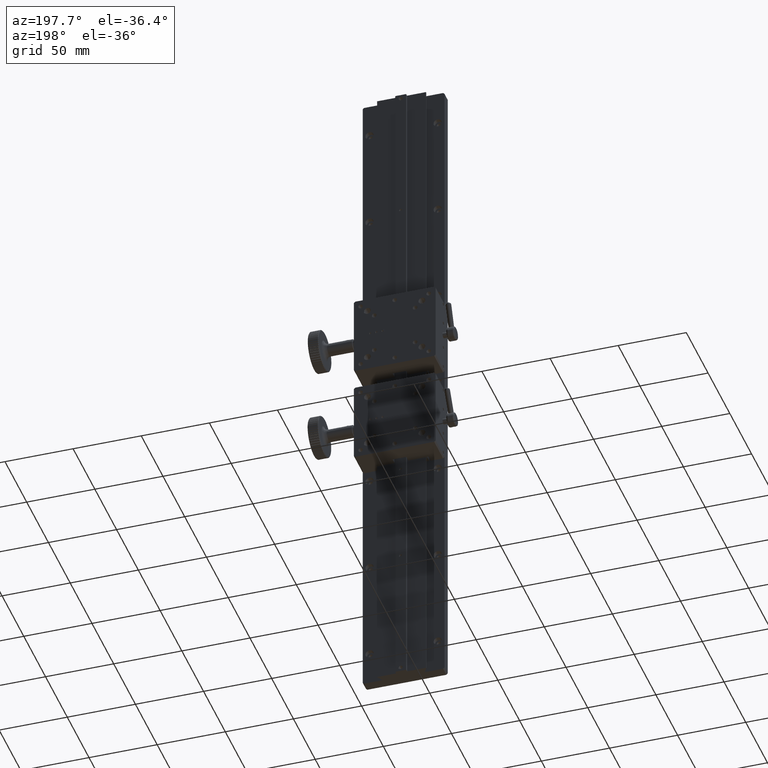
[diagram: clean part render]
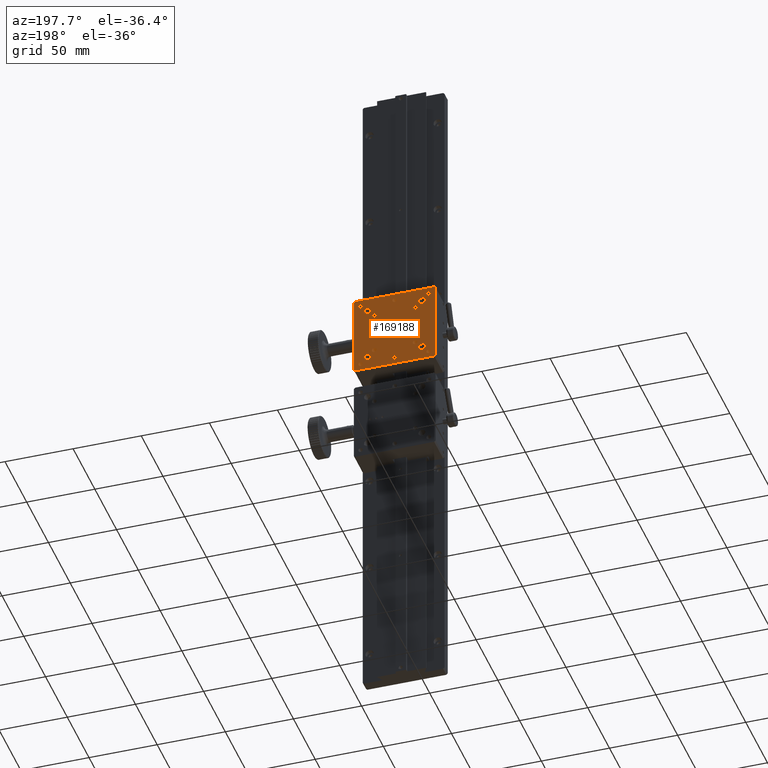
[diagram: same view with one face highlighted and labeled with its STEP entity id]
A machine part, auxiliary view. The second image highlights one B-rep face of the part: STEP entity #169188.
In plain terms, the highlighted planar face has unit normal (0, -1, 0).
Its self-contained STEP definition (entity closure, byte-faithful):
#4485 = CARTESIAN_POINT ( 'NONE',  ( 81.25156960994729616, 85.10272800986780339, 301.1623115483058086 ) ) ;
#6224 = DIRECTION ( 'NONE',  ( -1.000000000000000000, -5.551115123125777969E-15, 0.000000000000000000 ) ) ;
#6502 = DIRECTION ( 'NONE',  ( -0.7071067811865450192, -0.000000000000000000, 0.7071067811865500152 ) ) ;
#6530 = CARTESIAN_POINT ( 'NONE',  ( 89.50156960994729616, 85.10272800986787445, 326.1623115483058086 ) ) ;
#6948 = AXIS2_PLACEMENT_3D ( 'NONE', #197762, #8533, #70943 ) ;
#7522 = VERTEX_POINT ( 'NONE', #4485 ) ;
#8533 = DIRECTION ( 'NONE',  ( 6.982962677686266711E-15, -1.000000000000000000, 0.000000000000000000 ) ) ;
#11291 = AXIS2_PLACEMENT_3D ( 'NONE', #185112, #107363, #12258 ) ;
#11838 = DIRECTION ( 'NONE',  ( -6.982962677686266711E-15, 1.000000000000000000, 0.000000000000000000 ) ) ;
#12258 = DIRECTION ( 'NONE',  ( -1.000000000000000000, -5.551115123125777969E-15, 0.000000000000000000 ) ) ;
#12839 = DIRECTION ( 'NONE',  ( -1.000000000000000000, -8.410780489584597367E-15, 0.000000000000000000 ) ) ;
#13602 = AXIS2_PLACEMENT_3D ( 'NONE', #199665, #138268, #150581 ) ;
#14218 = AXIS2_PLACEMENT_3D ( 'NONE', #82358, #181527, #165202 ) ;
#14863 = ORIENTED_EDGE ( 'NONE', *, *, #68197, .F. ) ;
#16011 = AXIS2_PLACEMENT_3D ( 'NONE', #44872, #43873, #200396 ) ;
#16084 = VERTEX_POINT ( 'NONE', #95844 ) ;
#16324 = EDGE_LOOP ( 'NONE', ( #154426 ) ) ;
#19547 = EDGE_LOOP ( 'NONE', ( #190858 ) ) ;
#21563 = VERTEX_POINT ( 'NONE', #56458 ) ;
#21857 = DIRECTION ( 'NONE',  ( -1.000000000000000000, -8.410780489584597367E-15, 0.000000000000000000 ) ) ;
#22361 = CIRCLE ( 'NONE', #192216, 1.249999999999973355 ) ;
#22595 = EDGE_LOOP ( 'NONE', ( #23363 ) ) ;
#23037 = CARTESIAN_POINT ( 'NONE',  ( 94.50156960994731037, 85.10272800986791708, 330.1623115483057518 ) ) ;
#23363 = ORIENTED_EDGE ( 'NONE', *, *, #66671, .F. ) ;
#24172 = EDGE_CURVE ( 'NONE', #191690, #191690, #149913, .T. ) ;
#24865 = FACE_BOUND ( 'NONE', #92824, .T. ) ;
#25069 = ORIENTED_EDGE ( 'NONE', *, *, #109937, .F. ) ;
#27014 = DIRECTION ( 'NONE',  ( -1.000000000000000000, -1.110223024625180206E-14, 0.000000000000000000 ) ) ;
#27038 = ORIENTED_EDGE ( 'NONE', *, *, #124105, .F. ) ;
#27259 = DIRECTION ( 'NONE',  ( -6.982962677686266711E-15, 1.000000000000000000, 0.000000000000000000 ) ) ;
#28276 = EDGE_CURVE ( 'NONE', #7522, #7522, #70915, .T. ) ;
#31931 = DIRECTION ( 'NONE',  ( -1.000000000000000000, -8.410780489584597367E-15, 0.000000000000000000 ) ) ;
#32166 = ORIENTED_EDGE ( 'NONE', *, *, #76523, .F. ) ;
#32317 = ORIENTED_EDGE ( 'NONE', *, *, #24172, .F. ) ;
#32933 = DIRECTION ( 'NONE',  ( -6.982962677686266711E-15, 1.000000000000000000, 0.000000000000000000 ) ) ;
#33892 = AXIS2_PLACEMENT_3D ( 'NONE', #165435, #27259, #168474 ) ;
#36187 = ORIENTED_EDGE ( 'NONE', *, *, #131826, .F. ) ;
#36358 = CARTESIAN_POINT ( 'NONE',  ( 34.50156960994726774, 85.10272800986751918, 272.1623115483058086 ) ) ;
#36536 = EDGE_CURVE ( 'NONE', #86558, #92580, #110311, .T. ) ;
#37644 = DIRECTION ( 'NONE',  ( -0.7071067811865525687, -0.000000000000000000, -0.7071067811865425767 ) ) ;
#37935 = EDGE_LOOP ( 'NONE', ( #32317 ) ) ;
#41244 = CARTESIAN_POINT ( 'NONE',  ( 77.85156960994727626, 85.10272800986778918, 316.1623115483058086 ) ) ;
#42371 = DIRECTION ( 'NONE',  ( -6.982962677686266711E-15, 1.000000000000000000, 0.000000000000000000 ) ) ;
#43270 = FACE_BOUND ( 'NONE', #154446, .T. ) ;
#43585 = CARTESIAN_POINT ( 'NONE',  ( 79.50156960994726774, 85.10272800986780339, 286.1623115483058655 ) ) ;
#43873 = DIRECTION ( 'NONE',  ( -6.982962677686266711E-15, 1.000000000000000000, 0.000000000000000000 ) ) ;
#44267 = FACE_BOUND ( 'NONE', #68631, .T. ) ;
#44642 = DIRECTION ( 'NONE',  ( -1.000000000000000000, -6.982962677686266711E-15, -0.000000000000000000 ) ) ;
#44872 = CARTESIAN_POINT ( 'NONE',  ( 39.50156960994726774, 85.10272800986751918, 276.1623115483059223 ) ) ;
#46167 = AXIS2_PLACEMENT_3D ( 'NONE', #84987, #100320, #6224 ) ;
#46280 = CARTESIAN_POINT ( 'NONE',  ( 37.85156960994728337, 85.10272800986751918, 326.1623115483058086 ) ) ;
#48318 = CARTESIAN_POINT ( 'NONE',  ( 39.50156960994726774, 85.10272800986751918, 326.1623115483058086 ) ) ;
#51024 = ORIENTED_EDGE ( 'NONE', *, *, #194098, .F. ) ;
#51538 = CARTESIAN_POINT ( 'NONE',  ( 93.50156960994729616, 85.10272800986791708, 331.1623115483058086 ) ) ;
#52248 = EDGE_LOOP ( 'NONE', ( #153198 ) ) ;
#53356 = AXIS2_PLACEMENT_3D ( 'NONE', #63118, #125524, #94803 ) ;
#53853 = CARTESIAN_POINT ( 'NONE',  ( 34.50156960994726774, 85.10272800986750497, 271.1623115483058086 ) ) ;
#53971 = ORIENTED_EDGE ( 'NONE', *, *, #119361, .F. ) ;
#55141 = AXIS2_PLACEMENT_3D ( 'NONE', #133603, #11838, #12839 ) ;
#56422 = EDGE_CURVE ( 'NONE', #196757, #196757, #84496, .T. ) ;
#56458 = CARTESIAN_POINT ( 'NONE',  ( 94.50156960994729616, 85.10272800986791708, 272.1623115483058086 ) ) ;
#58076 = CARTESIAN_POINT ( 'NONE',  ( 94.50156960994726774, 85.10272800986791708, 272.1623115483058086 ) ) ;
#59641 = FACE_BOUND ( 'NONE', #194192, .T. ) ;
#60083 = EDGE_CURVE ( 'NONE', #139391, #139391, #76853, .T. ) ;
#61011 = LINE ( 'NONE', #106043, #166330 ) ;
#61131 = AXIS2_PLACEMENT_3D ( 'NONE', #88722, #183835, #106091 ) ;
#61686 = AXIS2_PLACEMENT_3D ( 'NONE', #72853, #135237, #167990 ) ;
#62277 = DIRECTION ( 'NONE',  ( 0.000000000000000000, -0.000000000000000000, -1.000000000000000000 ) ) ;
#63118 = CARTESIAN_POINT ( 'NONE',  ( 89.50156960994728195, 85.10272800986787445, 276.1623115483059223 ) ) ;
#63294 = VECTOR ( 'NONE', #134209, 999.9999999999998863 ) ;
#64616 = AXIS2_PLACEMENT_3D ( 'NONE', #6530, #86305, #21857 ) ;
#64652 = VERTEX_POINT ( 'NONE', #127049 ) ;
#65181 = EDGE_LOOP ( 'NONE', ( #71122 ) ) ;
#66671 = EDGE_CURVE ( 'NONE', #64652, #64652, #113962, .T. ) ;
#66900 = LINE ( 'NONE', #51538, #162616 ) ;
#67603 = EDGE_LOOP ( 'NONE', ( #184683 ) ) ;
#68197 = EDGE_CURVE ( 'NONE', #113425, #129528, #61011, .T. ) ;
#68631 = EDGE_LOOP ( 'NONE', ( #175545 ) ) ;
#68895 = DIRECTION ( 'NONE',  ( -6.982962677686266711E-15, 1.000000000000000000, 0.000000000000000000 ) ) ;
#68947 = VERTEX_POINT ( 'NONE', #144664 ) ;
#69959 = CARTESIAN_POINT ( 'NONE',  ( 62.85156960994728337, 85.10272800986767550, 276.1623115483059223 ) ) ;
#70168 = DIRECTION ( 'NONE',  ( -1.000000000000000000, -5.551115123125777969E-15, 0.000000000000000000 ) ) ;
#70711 = VERTEX_POINT ( 'NONE', #149465 ) ;
#70915 = CIRCLE ( 'NONE', #61131, 1.249999999999973355 ) ;
#70943 = DIRECTION ( 'NONE',  ( 1.000000000000000000, 6.982962677686266711E-15, 0.000000000000000000 ) ) ;
#71122 = ORIENTED_EDGE ( 'NONE', *, *, #192799, .F. ) ;
#71332 = ORIENTED_EDGE ( 'NONE', *, *, #77920, .T. ) ;
#72853 = CARTESIAN_POINT ( 'NONE',  ( 49.50156960994726774, 85.10272800986759023, 286.1623115483058655 ) ) ;
#72977 = FACE_BOUND ( 'NONE', #191419, .T. ) ;
#76523 = EDGE_CURVE ( 'NONE', #112692, #112692, #102672, .T. ) ;
#76853 = CIRCLE ( 'NONE', #142245, 1.649999999999984812 ) ;
#77920 = EDGE_CURVE ( 'NONE', #21563, #195431, #198219, .T. ) ;
#82264 = VERTEX_POINT ( 'NONE', #129326 ) ;
#82358 = CARTESIAN_POINT ( 'NONE',  ( 64.50156960994726774, 85.10272800986768971, 276.1623115483059223 ) ) ;
#84496 = CIRCLE ( 'NONE', #55141, 1.649999999999984812 ) ;
#84987 = CARTESIAN_POINT ( 'NONE',  ( 44.50156960994726063, 85.10272800986754760, 321.1623115483058086 ) ) ;
#86049 = VERTEX_POINT ( 'NONE', #148455 ) ;
#86281 = FACE_BOUND ( 'NONE', #168104, .T. ) ;
#86305 = DIRECTION ( 'NONE',  ( -6.982962677686266711E-15, 1.000000000000000000, 0.000000000000000000 ) ) ;
#86558 = VERTEX_POINT ( 'NONE', #194971 ) ;
#88178 = LINE ( 'NONE', #165961, #63294 ) ;
#88722 = CARTESIAN_POINT ( 'NONE',  ( 82.50156960994726774, 85.10272800986781760, 301.1623115483058086 ) ) ;
#88840 = EDGE_LOOP ( 'NONE', ( #199035 ) ) ;
#89399 = AXIS2_PLACEMENT_3D ( 'NONE', #146617, #68895, #193689 ) ;
#89574 = CIRCLE ( 'NONE', #33892, 1.649999999999984812 ) ;
#92580 = VERTEX_POINT ( 'NONE', #36358 ) ;
#92824 = EDGE_LOOP ( 'NONE', ( #156133 ) ) ;
#92975 = DIRECTION ( 'NONE',  ( -1.000000000000000000, -1.110223024625180206E-14, 0.000000000000000000 ) ) ;
#93106 = CARTESIAN_POINT ( 'NONE',  ( 35.50156960994725353, 85.10272800986751918, 331.1623115483058086 ) ) ;
#94374 = EDGE_CURVE ( 'NONE', #70711, #70711, #89574, .T. ) ;
#94803 = DIRECTION ( 'NONE',  ( -1.000000000000000000, -8.410780489584597367E-15, 0.000000000000000000 ) ) ;
#95844 = CARTESIAN_POINT ( 'NONE',  ( 77.85156960994727626, 85.10272800986778918, 286.1623115483058655 ) ) ;
#95975 = DIRECTION ( 'NONE',  ( -6.982962677686266711E-15, 1.000000000000000000, 0.000000000000000000 ) ) ;
#100320 = DIRECTION ( 'NONE',  ( -6.982962677686266711E-15, 1.000000000000000000, 0.000000000000000000 ) ) ;
#101844 = ORIENTED_EDGE ( 'NONE', *, *, #125742, .F. ) ;
#102318 = CARTESIAN_POINT ( 'NONE',  ( 93.50156960994732458, 85.10272800986790287, 331.1623115483058086 ) ) ;
#102408 = CIRCLE ( 'NONE', #200441, 2.500000000000002220 ) ;
#102672 = CIRCLE ( 'NONE', #11291, 2.500000000000002220 ) ;
#106043 = CARTESIAN_POINT ( 'NONE',  ( 34.50156960994726774, 85.10272800986750497, 331.1623115483058086 ) ) ;
#106091 = DIRECTION ( 'NONE',  ( -1.000000000000000000, -1.110223024625180206E-14, 0.000000000000000000 ) ) ;
#106673 = FACE_BOUND ( 'NONE', #37935, .T. ) ;
#107363 = DIRECTION ( 'NONE',  ( -6.982962677686266711E-15, 1.000000000000000000, 0.000000000000000000 ) ) ;
#108984 = DIRECTION ( 'NONE',  ( -1.000000000000000000, -8.410780489584597367E-15, 0.000000000000000000 ) ) ;
#109937 = EDGE_CURVE ( 'NONE', #86049, #86049, #167304, .T. ) ;
#110311 = LINE ( 'NONE', #202429, #117176 ) ;
#112692 = VERTEX_POINT ( 'NONE', #128048 ) ;
#112851 = EDGE_CURVE ( 'NONE', #16084, #16084, #199989, .T. ) ;
#113425 = VERTEX_POINT ( 'NONE', #102318 ) ;
#113962 = CIRCLE ( 'NONE', #16011, 1.649999999999984812 ) ;
#114163 = DIRECTION ( 'NONE',  ( -6.982962677686266711E-15, 1.000000000000000000, 0.000000000000000000 ) ) ;
#114758 = CIRCLE ( 'NONE', #46167, 2.500000000000002220 ) ;
#116239 = DIRECTION ( 'NONE',  ( 1.000000000000000000, 6.982962677686266711E-15, 0.000000000000000000 ) ) ;
#116928 = CARTESIAN_POINT ( 'NONE',  ( 35.50156960994731037, 85.10272800986760444, 271.1623115483058086 ) ) ;
#117176 = VECTOR ( 'NONE', #62277, 1000.000000000000000 ) ;
#117254 = VERTEX_POINT ( 'NONE', #163334 ) ;
#117987 = FACE_BOUND ( 'NONE', #65181, .T. ) ;
#119276 = CARTESIAN_POINT ( 'NONE',  ( 42.00156960994726063, 85.10272800986753339, 321.1623115483058086 ) ) ;
#119361 = EDGE_CURVE ( 'NONE', #188961, #195431, #193988, .T. ) ;
#120010 = FACE_BOUND ( 'NONE', #52248, .T. ) ;
#120523 = EDGE_CURVE ( 'NONE', #160284, #160284, #177617, .T. ) ;
#121974 = VECTOR ( 'NONE', #186208, 999.9999999999998863 ) ;
#122037 = FACE_OUTER_BOUND ( 'NONE', #147129, .T. ) ;
#124105 = EDGE_CURVE ( 'NONE', #174031, #113425, #66900, .T. ) ;
#125524 = DIRECTION ( 'NONE',  ( -6.982962677686266711E-15, 1.000000000000000000, 0.000000000000000000 ) ) ;
#125742 = EDGE_CURVE ( 'NONE', #117254, #117254, #152839, .T. ) ;
#127049 = CARTESIAN_POINT ( 'NONE',  ( 37.85156960994728337, 85.10272800986751918, 276.1623115483059223 ) ) ;
#128048 = CARTESIAN_POINT ( 'NONE',  ( 42.00156960994726063, 85.10272800986753339, 281.1623115483059223 ) ) ;
#129326 = CARTESIAN_POINT ( 'NONE',  ( 82.00156960994725353, 85.10272800986781760, 321.1623115483058086 ) ) ;
#129528 = VERTEX_POINT ( 'NONE', #178529 ) ;
#131826 = EDGE_CURVE ( 'NONE', #177652, #177652, #22361, .T. ) ;
#133331 = FACE_BOUND ( 'NONE', #22595, .T. ) ;
#133603 = CARTESIAN_POINT ( 'NONE',  ( 79.50156960994726774, 85.10272800986780339, 316.1623115483058086 ) ) ;
#134209 = DIRECTION ( 'NONE',  ( -0.7071067811865525687, -0.000000000000000000, 0.7071067811865425767 ) ) ;
#135237 = DIRECTION ( 'NONE',  ( -6.982962677686266711E-15, 1.000000000000000000, 0.000000000000000000 ) ) ;
#135359 = PLANE ( 'NONE',  #6948 ) ;
#135579 = VECTOR ( 'NONE', #37644, 999.9999999999998863 ) ;
#137383 = FACE_BOUND ( 'NONE', #179864, .T. ) ;
#138268 = DIRECTION ( 'NONE',  ( -6.982962677686266711E-15, 1.000000000000000000, 0.000000000000000000 ) ) ;
#139391 = VERTEX_POINT ( 'NONE', #46280 ) ;
#141685 = AXIS2_PLACEMENT_3D ( 'NONE', #182527, #42371, #27014 ) ;
#142245 = AXIS2_PLACEMENT_3D ( 'NONE', #48318, #32933, #31931 ) ;
#143822 = ORIENTED_EDGE ( 'NONE', *, *, #192112, .F. ) ;
#144492 = EDGE_CURVE ( 'NONE', #150990, #150990, #114758, .T. ) ;
#144664 = CARTESIAN_POINT ( 'NONE',  ( 87.85156960994729047, 85.10272800986786024, 276.1623115483059223 ) ) ;
#144905 = CARTESIAN_POINT ( 'NONE',  ( 82.00156960994725353, 85.10272800986781760, 281.1623115483059223 ) ) ;
#146617 = CARTESIAN_POINT ( 'NONE',  ( 84.50156960994725353, 85.10272800986783182, 281.1623115483059223 ) ) ;
#147129 = EDGE_LOOP ( 'NONE', ( #71332, #53971, #152259, #178436, #174821, #14863, #27038, #163218 ) ) ;
#148455 = CARTESIAN_POINT ( 'NONE',  ( 62.85156960994728337, 85.10272800986767550, 326.1623115483058086 ) ) ;
#148687 = FACE_BOUND ( 'NONE', #67603, .T. ) ;
#149465 = CARTESIAN_POINT ( 'NONE',  ( 47.85156960994728337, 85.10272800986757602, 316.1623115483058086 ) ) ;
#149698 = FACE_BOUND ( 'NONE', #197289, .T. ) ;
#149913 = CIRCLE ( 'NONE', #61686, 1.649999999999984812 ) ;
#150581 = DIRECTION ( 'NONE',  ( -1.000000000000000000, -8.410780489584597367E-15, 0.000000000000000000 ) ) ;
#150990 = VERTEX_POINT ( 'NONE', #119276 ) ;
#151734 = FACE_BOUND ( 'NONE', #19547, .T. ) ;
#152259 = ORIENTED_EDGE ( 'NONE', *, *, #195814, .T. ) ;
#152839 = CIRCLE ( 'NONE', #64616, 1.649999999999984812 ) ;
#153198 = ORIENTED_EDGE ( 'NONE', *, *, #56422, .F. ) ;
#154426 = ORIENTED_EDGE ( 'NONE', *, *, #60083, .F. ) ;
#154446 = EDGE_LOOP ( 'NONE', ( #25069 ) ) ;
#154865 = CARTESIAN_POINT ( 'NONE',  ( 94.50156960994726774, 85.10272800986791708, 331.1623115483058086 ) ) ;
#155401 = CARTESIAN_POINT ( 'NONE',  ( 78.00156960994726774, 85.10272800986778918, 301.1623115483058086 ) ) ;
#156133 = ORIENTED_EDGE ( 'NONE', *, *, #112851, .F. ) ;
#156873 = LINE ( 'NONE', #154865, #200572 ) ;
#159462 = EDGE_CURVE ( 'NONE', #129528, #86558, #173902, .T. ) ;
#160284 = VERTEX_POINT ( 'NONE', #144905 ) ;
#160820 = AXIS2_PLACEMENT_3D ( 'NONE', #43585, #184735, #108984 ) ;
#161057 = CARTESIAN_POINT ( 'NONE',  ( 72.25156960994731037, 85.10272800986774655, 301.1623115483058086 ) ) ;
#161303 = CARTESIAN_POINT ( 'NONE',  ( 76.75156960994729616, 85.10272800986777497, 301.1623115483058086 ) ) ;
#162616 = VECTOR ( 'NONE', #6502, 1000.000000000000000 ) ;
#163056 = CARTESIAN_POINT ( 'NONE',  ( 47.85156960994728337, 85.10272800986757602, 286.1623115483058655 ) ) ;
#163218 = ORIENTED_EDGE ( 'NONE', *, *, #194206, .F. ) ;
#163334 = CARTESIAN_POINT ( 'NONE',  ( 87.85156960994730468, 85.10272800986786024, 326.1623115483058086 ) ) ;
#165084 = FACE_BOUND ( 'NONE', #165830, .T. ) ;
#165202 = DIRECTION ( 'NONE',  ( -1.000000000000000000, -8.410780489584597367E-15, 0.000000000000000000 ) ) ;
#165435 = CARTESIAN_POINT ( 'NONE',  ( 49.50156960994726774, 85.10272800986759023, 316.1623115483058086 ) ) ;
#165830 = EDGE_LOOP ( 'NONE', ( #51024 ) ) ;
#165961 = CARTESIAN_POINT ( 'NONE',  ( 34.50156960994733879, 85.10272800986751918, 272.1623115483057518 ) ) ;
#166330 = VECTOR ( 'NONE', #44642, 1000.000000000000000 ) ;
#167304 = CIRCLE ( 'NONE', #13602, 1.649999999999984812 ) ;
#167990 = DIRECTION ( 'NONE',  ( -1.000000000000000000, -8.410780489584597367E-15, 0.000000000000000000 ) ) ;
#168104 = EDGE_LOOP ( 'NONE', ( #143822 ) ) ;
#168109 = FACE_BOUND ( 'NONE', #88840, .T. ) ;
#168474 = DIRECTION ( 'NONE',  ( -1.000000000000000000, -8.410780489584597367E-15, 0.000000000000000000 ) ) ;
#169113 = FACE_BOUND ( 'NONE', #16324, .T. ) ;
#169188 = ADVANCED_FACE ( 'NONE', ( #149698, #137383, #86281, #44267, #117987, #122037, #148687, #59641, #165084, #120010, #24865, #106673, #168109, #43270, #72977, #151734, #133331, #169113 ), #135359, .F. ) ;
#170228 = DIRECTION ( 'NONE',  ( -0.000000000000000000, 0.000000000000000000, 1.000000000000000000 ) ) ;
#171224 = CIRCLE ( 'NONE', #141685, 1.249999999999973355 ) ;
#173902 = LINE ( 'NONE', #93106, #121974 ) ;
#174031 = VERTEX_POINT ( 'NONE', #23037 ) ;
#174821 = ORIENTED_EDGE ( 'NONE', *, *, #159462, .F. ) ;
#175545 = ORIENTED_EDGE ( 'NONE', *, *, #144492, .F. ) ;
#176239 = CARTESIAN_POINT ( 'NONE',  ( 93.50156960994729616, 85.10272800986790287, 271.1623115483058086 ) ) ;
#176394 = VERTEX_POINT ( 'NONE', #69959 ) ;
#177489 = CIRCLE ( 'NONE', #14218, 1.649999999999984812 ) ;
#177617 = CIRCLE ( 'NONE', #89399, 2.500000000000002220 ) ;
#177652 = VERTEX_POINT ( 'NONE', #161303 ) ;
#178425 = VERTEX_POINT ( 'NONE', #161057 ) ;
#178436 = ORIENTED_EDGE ( 'NONE', *, *, #36536, .F. ) ;
#178529 = CARTESIAN_POINT ( 'NONE',  ( 35.50156960994728905, 85.10272800986760444, 331.1623115483058655 ) ) ;
#179864 = EDGE_LOOP ( 'NONE', ( #194210 ) ) ;
#181527 = DIRECTION ( 'NONE',  ( -6.982962677686266711E-15, 1.000000000000000000, 0.000000000000000000 ) ) ;
#182527 = CARTESIAN_POINT ( 'NONE',  ( 73.50156960994729616, 85.10272800986776076, 301.1623115483058086 ) ) ;
#183835 = DIRECTION ( 'NONE',  ( -6.982962677686266711E-15, 1.000000000000000000, 0.000000000000000000 ) ) ;
#184683 = ORIENTED_EDGE ( 'NONE', *, *, #28276, .F. ) ;
#184735 = DIRECTION ( 'NONE',  ( -6.982962677686266711E-15, 1.000000000000000000, 0.000000000000000000 ) ) ;
#185112 = CARTESIAN_POINT ( 'NONE',  ( 44.50156960994726063, 85.10272800986754760, 281.1623115483059223 ) ) ;
#186208 = DIRECTION ( 'NONE',  ( -0.7071067811865425767, -0.000000000000000000, -0.7071067811865525687 ) ) ;
#188961 = VERTEX_POINT ( 'NONE', #116928 ) ;
#190858 = ORIENTED_EDGE ( 'NONE', *, *, #191877, .F. ) ;
#191419 = EDGE_LOOP ( 'NONE', ( #101844 ) ) ;
#191690 = VERTEX_POINT ( 'NONE', #163056 ) ;
#191877 = EDGE_CURVE ( 'NONE', #68947, #68947, #197063, .T. ) ;
#192112 = EDGE_CURVE ( 'NONE', #82264, #82264, #102408, .T. ) ;
#192216 = AXIS2_PLACEMENT_3D ( 'NONE', #155401, #95975, #92975 ) ;
#192799 = EDGE_CURVE ( 'NONE', #176394, #176394, #177489, .T. ) ;
#193689 = DIRECTION ( 'NONE',  ( -1.000000000000000000, -5.551115123125777969E-15, 0.000000000000000000 ) ) ;
#193951 = CARTESIAN_POINT ( 'NONE',  ( 84.50156960994725353, 85.10272800986783182, 321.1623115483058086 ) ) ;
#193988 = LINE ( 'NONE', #53853, #197198 ) ;
#194098 = EDGE_CURVE ( 'NONE', #178425, #178425, #171224, .T. ) ;
#194192 = EDGE_LOOP ( 'NONE', ( #36187 ) ) ;
#194206 = EDGE_CURVE ( 'NONE', #21563, #174031, #156873, .T. ) ;
#194210 = ORIENTED_EDGE ( 'NONE', *, *, #120523, .F. ) ;
#194971 = CARTESIAN_POINT ( 'NONE',  ( 34.50156960994726774, 85.10272800986751918, 330.1623115483058086 ) ) ;
#195431 = VERTEX_POINT ( 'NONE', #176239 ) ;
#195814 = EDGE_CURVE ( 'NONE', #188961, #92580, #88178, .T. ) ;
#196757 = VERTEX_POINT ( 'NONE', #41244 ) ;
#197063 = CIRCLE ( 'NONE', #53356, 1.649999999999984812 ) ;
#197198 = VECTOR ( 'NONE', #116239, 1000.000000000000000 ) ;
#197289 = EDGE_LOOP ( 'NONE', ( #32166 ) ) ;
#197762 = CARTESIAN_POINT ( 'NONE',  ( 34.50156960994726774, 85.10272800986750497, 331.1623115483058086 ) ) ;
#198219 = LINE ( 'NONE', #58076, #135579 ) ;
#199035 = ORIENTED_EDGE ( 'NONE', *, *, #94374, .F. ) ;
#199665 = CARTESIAN_POINT ( 'NONE',  ( 64.50156960994726774, 85.10272800986768971, 326.1623115483058086 ) ) ;
#199989 = CIRCLE ( 'NONE', #160820, 1.649999999999984812 ) ;
#200396 = DIRECTION ( 'NONE',  ( -1.000000000000000000, -8.410780489584597367E-15, 0.000000000000000000 ) ) ;
#200441 = AXIS2_PLACEMENT_3D ( 'NONE', #193951, #114163, #70168 ) ;
#200572 = VECTOR ( 'NONE', #170228, 1000.000000000000000 ) ;
#202429 = CARTESIAN_POINT ( 'NONE',  ( 34.50156960994726774, 85.10272800986750497, 331.1623115483058086 ) ) ;